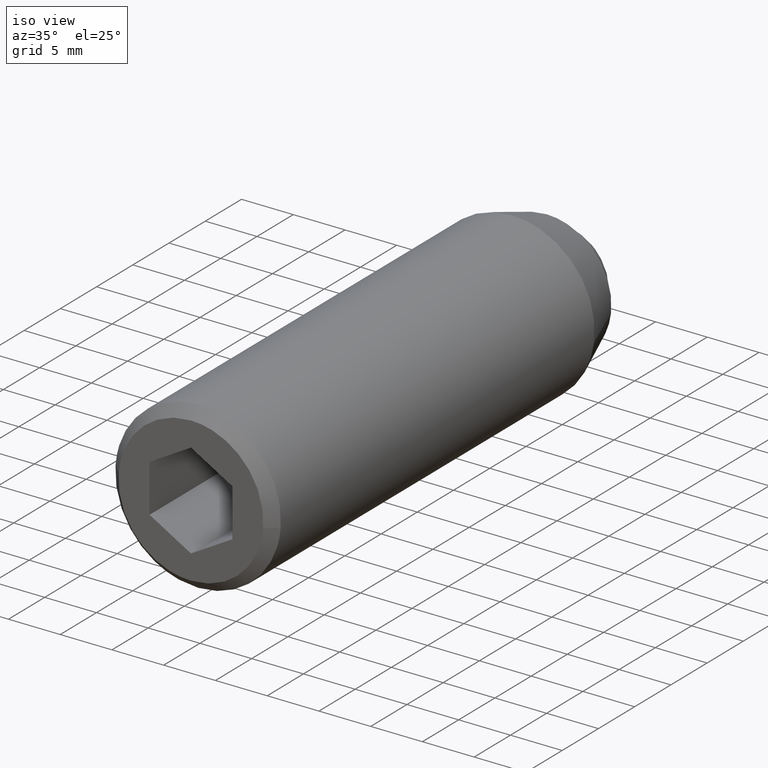
[diagram: clean part render]
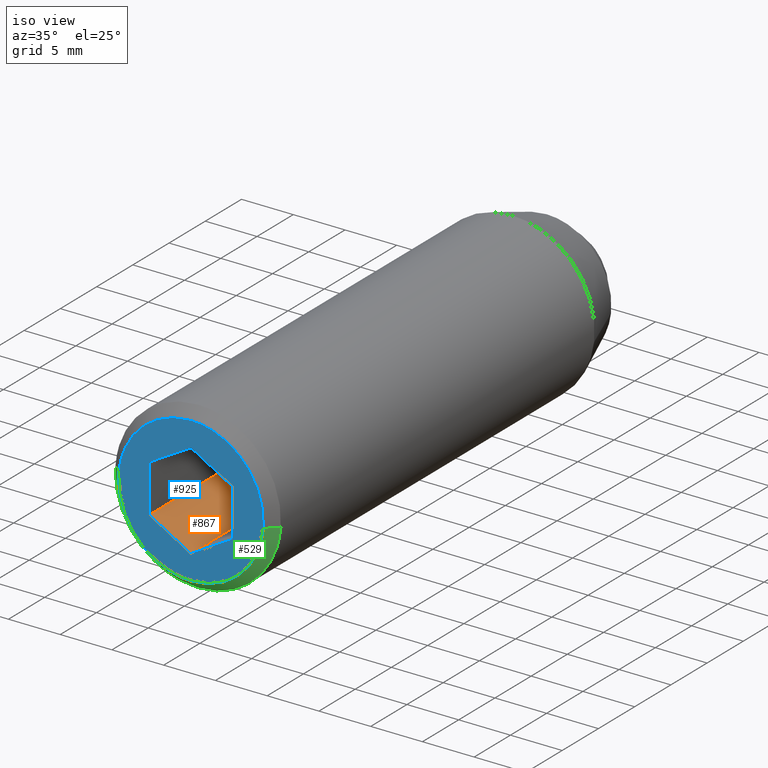
[diagram: same view with three faces highlighted in distinct colors, each labeled with its STEP entity id]
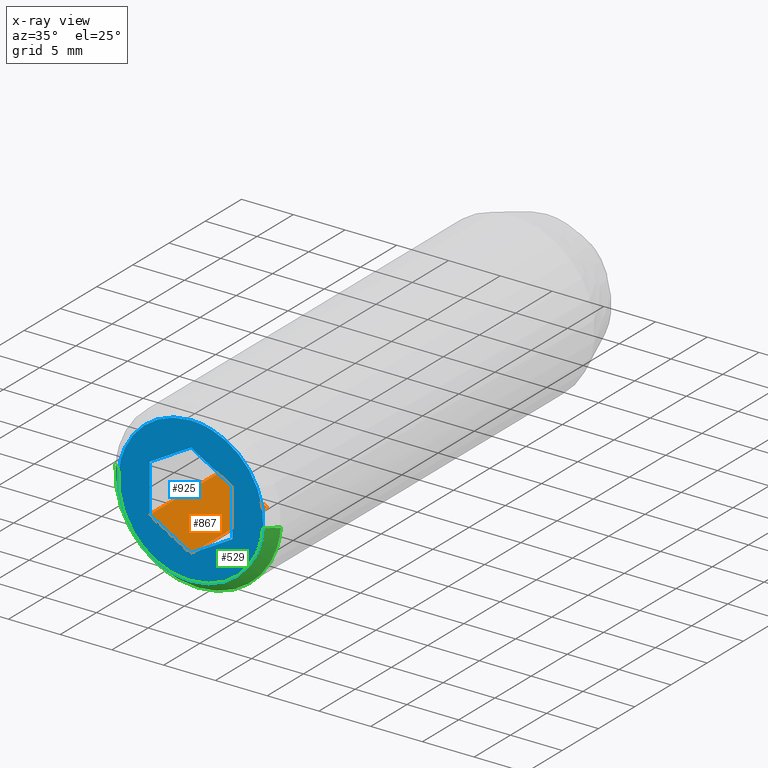
[diagram: x-ray of the same camera — body ghosted, the three highlighted faces saturated]
A machine part, iso view with three faces highlighted in distinct colors.
The next image is the same camera in x-ray (body ghosted, the three faces saturated) — at least one of them is partly hidden behind the body in this view.
Their STEP definitions:

[orange] entity #867 — the highlighted face is a freeform B-spline surface patch.
#738=CARTESIAN_POINT('',(-4.0,-38.600000000000001,-2.309401000000000));
#739=VERTEX_POINT('',#738);
#745=CARTESIAN_POINT('',(0.0,-38.600000000000001,-4.618802000000000));
#746=VERTEX_POINT('',#745);
#747=CARTESIAN_POINT('',(-4.0,-38.600000000000001,-2.309401000000000));
#748=CARTESIAN_POINT('',(0.0,-38.600000000000001,-4.618802000000000));
#749=QUASI_UNIFORM_CURVE('',1,(#747,#748),.UNSPECIFIED.,.F.,.U.);
#750=EDGE_CURVE('',#739,#746,#749,.T.);
#829=CARTESIAN_POINT('',(0.0,-49.099999999999987,-4.618802000000000));
#830=VERTEX_POINT('',#829);
#838=CARTESIAN_POINT('',(0.0,-38.600000000000001,-4.618802000000000));
#839=CARTESIAN_POINT('',(0.0,-49.099999999999987,-4.618802000000000));
#840=QUASI_UNIFORM_CURVE('',1,(#838,#839),.UNSPECIFIED.,.F.,.U.);
#841=EDGE_CURVE('',#746,#830,#840,.T.);
#846=CARTESIAN_POINT('',(0.199800029796360,-49.624473477611922,-4.734156597152939));
#847=CARTESIAN_POINT('',(-4.199800101321936,-49.624473477611922,-2.194046361551755));
#848=CARTESIAN_POINT('',(0.199800029796360,-38.075523236682052,-4.734156597152940));
#849=CARTESIAN_POINT('',(-4.199800101321936,-38.075523236682052,-2.194046361551755));
#850=B_SPLINE_SURFACE_WITH_KNOTS('',1,1,((#846,#848),(#847,#849)),.UNSPECIFIED.,.F.,.F.,.U.,(2,2),(2,2),(0.0,5.080220597842385),(0.0,11.548950240929861),.UNSPECIFIED.);
#851=CARTESIAN_POINT('',(-4.0,-49.099999999999987,-2.309401000000000));
#852=VERTEX_POINT('',#851);
#853=CARTESIAN_POINT('',(-4.0,-49.099999999999987,-2.309401000000000));
#854=CARTESIAN_POINT('',(0.0,-49.099999999999987,-4.618802000000000));
#855=QUASI_UNIFORM_CURVE('',1,(#853,#854),.UNSPECIFIED.,.F.,.U.);
#856=EDGE_CURVE('',#852,#830,#855,.T.);
#857=ORIENTED_EDGE('',*,*,#856,.T.);
#858=ORIENTED_EDGE('',*,*,#841,.F.);
#859=ORIENTED_EDGE('',*,*,#750,.F.);
#860=CARTESIAN_POINT('',(-4.0,-38.600000000000001,-2.309401000000000));
#861=CARTESIAN_POINT('',(-4.0,-49.099999999999987,-2.309401000000000));
#862=QUASI_UNIFORM_CURVE('',1,(#860,#861),.UNSPECIFIED.,.F.,.U.);
#863=EDGE_CURVE('',#739,#852,#862,.T.);
#864=ORIENTED_EDGE('',*,*,#863,.T.);
#865=EDGE_LOOP('',(#857,#858,#859,#864));
#866=FACE_OUTER_BOUND('',#865,.T.);
#867=ADVANCED_FACE('',(#866),#850,.F.);

[blue] entity #925 — the highlighted face is a freeform B-spline surface patch.
#480=CARTESIAN_POINT('',(6.978421253376019,-49.100000088082872,-0.549213598948107));
#481=VERTEX_POINT('',#480);
#487=CARTESIAN_POINT('',(0.0,-49.099999999999987,-7.000000000000001));
#488=VERTEX_POINT('',#487);
#489=CARTESIAN_POINT('',(0.0,-49.099999999999987,-7.000000000000001));
#490=CARTESIAN_POINT('',(6.470733561101162,-49.099999999999980,-7.000000000000002));
#491=CARTESIAN_POINT('',(6.978421253376019,-49.100000088082872,-0.549213598948107));
#499=(BOUNDED_CURVE()B_SPLINE_CURVE(2,(#489,#490,#491),.UNSPECIFIED.,.F.,.U.)B_SPLINE_CURVE_WITH_KNOTS((3,3),(0.0,0.236331303788669),.UNSPECIFIED.)CURVE()GEOMETRIC_REPRESENTATION_ITEM()RATIONAL_B_SPLINE_CURVE((1.0,0.723120654907827,0.969723362757943))REPRESENTATION_ITEM(''));
#500=EDGE_CURVE('',#488,#481,#499,.T.);
#502=CARTESIAN_POINT('',(-6.978421253376018,-49.100000088082872,0.549213598948106));
#503=VERTEX_POINT('',#502);
#504=CARTESIAN_POINT('',(-6.978421253376018,-49.100000088082865,0.549213598948106));
#505=CARTESIAN_POINT('',(-6.999999999999999,-49.099999999999994,0.275030684519681));
#506=CARTESIAN_POINT('',(-7.0,-49.099999999999987,-1.291960E-015));
#507=CARTESIAN_POINT('',(-6.999999999999999,-49.100000000000001,-7.000000000000002));
#508=CARTESIAN_POINT('',(0.0,-49.099999999999987,-7.000000000000001));
#516=(BOUNDED_CURVE()B_SPLINE_CURVE(2,(#504,#505,#506,#507,#508),.UNSPECIFIED.,.F.,.U.)B_SPLINE_CURVE_WITH_KNOTS((3,2,3),(0.736331303788669,0.750000000000000,1.0),.UNSPECIFIED.)CURVE()GEOMETRIC_REPRESENTATION_ITEM()RATIONAL_B_SPLINE_CURVE((0.969723362757943,0.983986126278720,1.0,0.707106781186547,1.0))REPRESENTATION_ITEM(''));
#517=EDGE_CURVE('',#503,#488,#516,.T.);
#551=CARTESIAN_POINT('',(0.0,-49.099999999999987,6.999999999999999));
#552=VERTEX_POINT('',#551);
#553=CARTESIAN_POINT('',(0.0,-49.099999999999987,6.999999999999999));
#554=CARTESIAN_POINT('',(-6.470733561101126,-49.099999999999994,7.0));
#555=CARTESIAN_POINT('',(-6.978421253376018,-49.100000088082872,0.549213598948106));
#563=(BOUNDED_CURVE()B_SPLINE_CURVE(2,(#553,#554,#555),.UNSPECIFIED.,.F.,.U.)B_SPLINE_CURVE_WITH_KNOTS((3,3),(0.500000000000000,0.736331303788668),.UNSPECIFIED.)CURVE()GEOMETRIC_REPRESENTATION_ITEM()RATIONAL_B_SPLINE_CURVE((1.0,0.723120654907828,0.969723362757941))REPRESENTATION_ITEM(''));
#564=EDGE_CURVE('',#552,#503,#563,.T.);
#566=CARTESIAN_POINT('',(6.978421253376018,-49.100000088082865,-0.549213598948107));
#567=CARTESIAN_POINT('',(7.000000000000001,-49.100000000000001,-0.275030684519683));
#568=CARTESIAN_POINT('',(7.0,-49.099999999999987,-1.291960E-015));
#569=CARTESIAN_POINT('',(6.999999999999999,-49.100000000000001,6.999999999999999));
#570=CARTESIAN_POINT('',(0.0,-49.099999999999987,6.999999999999999));
#578=(BOUNDED_CURVE()B_SPLINE_CURVE(2,(#566,#567,#568,#569,#570),.UNSPECIFIED.,.F.,.U.)B_SPLINE_CURVE_WITH_KNOTS((3,2,3),(0.236331303788669,0.250000000000000,0.500000000000000),.UNSPECIFIED.)CURVE()GEOMETRIC_REPRESENTATION_ITEM()RATIONAL_B_SPLINE_CURVE((0.969723362757943,0.983986126278720,1.0,0.707106781186547,1.0))REPRESENTATION_ITEM(''));
#579=EDGE_CURVE('',#481,#552,#578,.T.);
#779=CARTESIAN_POINT('',(4.0,-49.099999999999987,2.309401000000000));
#780=VERTEX_POINT('',#779);
#781=CARTESIAN_POINT('',(0.0,-49.099999999999987,4.618802000000000));
#782=VERTEX_POINT('',#781);
#783=CARTESIAN_POINT('',(4.0,-49.099999999999987,2.309401000000000));
#784=CARTESIAN_POINT('',(0.0,-49.099999999999987,4.618802000000000));
#785=QUASI_UNIFORM_CURVE('',1,(#783,#784),.UNSPECIFIED.,.F.,.U.);
#786=EDGE_CURVE('',#780,#782,#785,.T.);
#807=CARTESIAN_POINT('',(4.0,-49.099999999999987,-2.309401000000000));
#808=VERTEX_POINT('',#807);
#809=CARTESIAN_POINT('',(4.0,-49.099999999999987,-2.309401000000000));
#810=CARTESIAN_POINT('',(4.0,-49.099999999999987,2.309401000000000));
#811=QUASI_UNIFORM_CURVE('',1,(#809,#810),.UNSPECIFIED.,.F.,.U.);
#812=EDGE_CURVE('',#808,#780,#811,.T.);
#829=CARTESIAN_POINT('',(0.0,-49.099999999999987,-4.618802000000000));
#830=VERTEX_POINT('',#829);
#831=CARTESIAN_POINT('',(0.0,-49.099999999999987,-4.618802000000000));
#832=CARTESIAN_POINT('',(4.0,-49.099999999999987,-2.309401000000000));
#833=QUASI_UNIFORM_CURVE('',1,(#831,#832),.UNSPECIFIED.,.F.,.U.);
#834=EDGE_CURVE('',#830,#808,#833,.T.);
#851=CARTESIAN_POINT('',(-4.0,-49.099999999999987,-2.309401000000000));
#852=VERTEX_POINT('',#851);
#853=CARTESIAN_POINT('',(-4.0,-49.099999999999987,-2.309401000000000));
#854=CARTESIAN_POINT('',(0.0,-49.099999999999987,-4.618802000000000));
#855=QUASI_UNIFORM_CURVE('',1,(#853,#854),.UNSPECIFIED.,.F.,.U.);
#856=EDGE_CURVE('',#852,#830,#855,.T.);
#873=CARTESIAN_POINT('',(-4.0,-49.099999999999987,2.309401000000000));
#874=VERTEX_POINT('',#873);
#875=CARTESIAN_POINT('',(-4.0,-49.099999999999987,2.309401000000000));
#876=CARTESIAN_POINT('',(-4.0,-49.099999999999987,-2.309401000000000));
#877=QUASI_UNIFORM_CURVE('',1,(#875,#876),.UNSPECIFIED.,.F.,.U.);
#878=EDGE_CURVE('',#874,#852,#877,.T.);
#895=CARTESIAN_POINT('',(0.0,-49.099999999999987,4.618802000000000));
#896=CARTESIAN_POINT('',(-4.0,-49.099999999999987,2.309401000000000));
#897=QUASI_UNIFORM_CURVE('',1,(#895,#896),.UNSPECIFIED.,.F.,.U.);
#898=EDGE_CURVE('',#782,#874,#897,.T.);
#906=CARTESIAN_POINT('',(-7.697163269087930,-49.099999999999987,7.699299972865284));
#907=CARTESIAN_POINT('',(-7.697163269087930,-49.099999999999987,-7.699300348374545));
#908=CARTESIAN_POINT('',(7.697163644597192,-49.099999999999987,7.699299972865284));
#909=CARTESIAN_POINT('',(7.697163644597192,-49.099999999999987,-7.699300348374545));
#910=B_SPLINE_SURFACE_WITH_KNOTS('',1,1,((#906,#908),(#907,#909)),.UNSPECIFIED.,.F.,.F.,.U.,(2,2),(2,2),(0.0,15.398600321239829),(0.0,15.394326913685120),.UNSPECIFIED.);
#911=ORIENTED_EDGE('',*,*,#500,.T.);
#912=ORIENTED_EDGE('',*,*,#579,.T.);
#913=ORIENTED_EDGE('',*,*,#564,.T.);
#914=ORIENTED_EDGE('',*,*,#517,.T.);
#915=EDGE_LOOP('',(#911,#912,#913,#914));
#916=FACE_OUTER_BOUND('',#915,.T.);
#917=ORIENTED_EDGE('',*,*,#898,.F.);
#918=ORIENTED_EDGE('',*,*,#786,.F.);
#919=ORIENTED_EDGE('',*,*,#812,.F.);
#920=ORIENTED_EDGE('',*,*,#834,.F.);
#921=ORIENTED_EDGE('',*,*,#856,.F.);
#922=ORIENTED_EDGE('',*,*,#878,.F.);
#923=EDGE_LOOP('',(#917,#918,#919,#920,#921,#922));
#924=FACE_BOUND('',#923,.T.);
#925=ADVANCED_FACE('',(#916,#924),#910,.T.);

[green] entity #529 — the highlighted face is a freeform B-spline surface patch.
#256=CARTESIAN_POINT('',(-1.874588911888321,-48.099999999999987,-7.777269212996639));
#257=VERTEX_POINT('',#256);
#258=CARTESIAN_POINT('',(0.0,-48.099999999999987,-8.000000000000002));
#259=VERTEX_POINT('',#258);
#260=CARTESIAN_POINT('',(-1.874588911888321,-48.100000000000001,-7.777269212996639));
#261=CARTESIAN_POINT('',(-0.950526424612221,-48.099999999999987,-8.000000000000002));
#262=CARTESIAN_POINT('',(0.0,-48.099999999999987,-8.000000000000002));
#270=(BOUNDED_CURVE()B_SPLINE_CURVE(2,(#260,#261,#262),.UNSPECIFIED.,.F.,.U.)B_SPLINE_CURVE_WITH_KNOTS((3,3),(0.959962709885903,1.0),.UNSPECIFIED.)CURVE()GEOMETRIC_REPRESENTATION_ITEM()RATIONAL_B_SPLINE_CURVE((0.921210900018794,0.953093396903657,1.0))REPRESENTATION_ITEM(''));
#271=EDGE_CURVE('',#257,#259,#270,.T.);
#342=CARTESIAN_POINT('',(-7.985078427886355,-48.099999999999987,0.488387653922092));
#343=VERTEX_POINT('',#342);
#349=CARTESIAN_POINT('',(-7.975338669871608,-48.099999999983417,0.627672765950198));
#350=VERTEX_POINT('',#349);
#351=CARTESIAN_POINT('',(-7.975338669871609,-48.099999999983424,0.627672765950198));
#352=CARTESIAN_POINT('',(-7.980816339169483,-48.100000000000009,0.558072378191406));
#353=CARTESIAN_POINT('',(-7.985078427886355,-48.099999999999994,0.488387653922092));
#361=(BOUNDED_CURVE()B_SPLINE_CURVE(2,(#351,#352,#353),.UNSPECIFIED.,.F.,.U.)B_SPLINE_CURVE_WITH_KNOTS((3,3),(0.736331300627344,0.739332990867243),.UNSPECIFIED.)CURVE()GEOMETRIC_REPRESENTATION_ITEM()RATIONAL_B_SPLINE_CURVE((0.969723356160499,0.972855505428922,0.976072103022623))REPRESENTATION_ITEM(''));
#362=EDGE_CURVE('',#350,#343,#361,.T.);
#379=CARTESIAN_POINT('',(7.975338669871608,-48.099999999983417,-0.627672765950198));
#380=VERTEX_POINT('',#379);
#396=CARTESIAN_POINT('',(0.0,-48.099999999999987,-8.000000000000002));
#397=CARTESIAN_POINT('',(7.395123933031013,-48.099999999999994,-8.000000000000002));
#398=CARTESIAN_POINT('',(7.975338669871608,-48.099999999983424,-0.627672765950198));
#406=(BOUNDED_CURVE()B_SPLINE_CURVE(2,(#396,#397,#398),.UNSPECIFIED.,.F.,.U.)B_SPLINE_CURVE_WITH_KNOTS((3,3),(0.0,0.236331300627345),.UNSPECIFIED.)CURVE()GEOMETRIC_REPRESENTATION_ITEM()RATIONAL_B_SPLINE_CURVE((1.0,0.723120658611550,0.969723356160499))REPRESENTATION_ITEM(''));
#407=EDGE_CURVE('',#259,#380,#406,.T.);
#426=CARTESIAN_POINT('',(-7.985078427886355,-48.099999999999994,0.488387653922092));
#427=CARTESIAN_POINT('',(-8.0,-48.099999999999994,0.244421442174768));
#428=CARTESIAN_POINT('',(-8.0,-48.099999999999987,-1.291960E-015));
#429=CARTESIAN_POINT('',(-8.0,-48.100000000000001,-6.300834825538831));
#430=CARTESIAN_POINT('',(-1.874588911888321,-48.100000000000001,-7.777269212996639));
#438=(BOUNDED_CURVE()B_SPLINE_CURVE(2,(#426,#427,#428,#429,#430),.UNSPECIFIED.,.F.,.U.)B_SPLINE_CURVE_WITH_KNOTS((3,2,3),(0.739332990867244,0.750000000000000,0.959962709885903),.UNSPECIFIED.)CURVE()GEOMETRIC_REPRESENTATION_ITEM()RATIONAL_B_SPLINE_CURVE((0.976072103022625,0.987502821439979,1.0,0.754013384282891,0.921210900018794))REPRESENTATION_ITEM(''));
#439=EDGE_CURVE('',#343,#257,#438,.T.);
#461=CARTESIAN_POINT('',(6.953498402788556,-49.125000000000000,-0.547252192701723));
#462=CARTESIAN_POINT('',(6.406246210086835,-49.125000000000000,-7.500750595490278));
#463=CARTESIAN_POINT('',(-0.547252192701722,-49.125000000000000,-6.953498402788557));
#464=CARTESIAN_POINT('',(-7.500750595490278,-49.125000000000000,-6.406246210086835));
#465=CARTESIAN_POINT('',(-6.953498402788556,-49.125000000000000,0.547252192701721));
#466=CARTESIAN_POINT('',(8.000884676541924,-48.074374999999989,-0.629683280150791));
#467=CARTESIAN_POINT('',(7.371201396391133,-48.074374999999989,-8.630567956692715));
#468=CARTESIAN_POINT('',(-0.629683280150790,-48.074374999999989,-8.000884676541926));
#469=CARTESIAN_POINT('',(-8.630567956692714,-48.074374999999989,-7.371201396391135));
#470=CARTESIAN_POINT('',(-8.000884676541924,-48.074374999999989,0.629683280150788));
#478=(BOUNDED_SURFACE()B_SPLINE_SURFACE(2,1,((#461,#466),(#462,#467),(#463,#468),(#464,#469),(#465,#470)),.UNSPECIFIED.,.F.,.F.,.U.)B_SPLINE_SURFACE_WITH_KNOTS((3,2,3),(2,2),(0.0,13.297290886082269,26.594581772164538),(0.0,1.0),.UNSPECIFIED.)GEOMETRIC_REPRESENTATION_ITEM()RATIONAL_B_SPLINE_SURFACE(((1.0,1.0),(0.707106781186548,0.707106781186548),(1.0,1.0),(0.707106781186548,0.707106781186548),(1.0,1.0)))REPRESENTATION_ITEM('')SURFACE());
#479=ORIENTED_EDGE('',*,*,#407,.T.);
#480=CARTESIAN_POINT('',(6.978421253376019,-49.100000088082872,-0.549213598948107));
#481=VERTEX_POINT('',#480);
#482=CARTESIAN_POINT('',(6.978421253376019,-49.100000088082872,-0.549213598948107));
#483=CARTESIAN_POINT('',(7.975338669871608,-48.099999999983417,-0.627672765950198));
#484=QUASI_UNIFORM_CURVE('',1,(#482,#483),.UNSPECIFIED.,.F.,.U.);
#485=EDGE_CURVE('',#481,#380,#484,.T.);
#486=ORIENTED_EDGE('',*,*,#485,.F.);
#487=CARTESIAN_POINT('',(0.0,-49.099999999999987,-7.000000000000001));
#488=VERTEX_POINT('',#487);
#489=CARTESIAN_POINT('',(0.0,-49.099999999999987,-7.000000000000001));
#490=CARTESIAN_POINT('',(6.470733561101162,-49.099999999999980,-7.000000000000002));
#491=CARTESIAN_POINT('',(6.978421253376019,-49.100000088082872,-0.549213598948107));
#499=(BOUNDED_CURVE()B_SPLINE_CURVE(2,(#489,#490,#491),.UNSPECIFIED.,.F.,.U.)B_SPLINE_CURVE_WITH_KNOTS((3,3),(0.0,0.236331303788669),.UNSPECIFIED.)CURVE()GEOMETRIC_REPRESENTATION_ITEM()RATIONAL_B_SPLINE_CURVE((1.0,0.723120654907827,0.969723362757943))REPRESENTATION_ITEM(''));
#500=EDGE_CURVE('',#488,#481,#499,.T.);
#501=ORIENTED_EDGE('',*,*,#500,.F.);
#502=CARTESIAN_POINT('',(-6.978421253376018,-49.100000088082872,0.549213598948106));
#503=VERTEX_POINT('',#502);
#504=CARTESIAN_POINT('',(-6.978421253376018,-49.100000088082865,0.549213598948106));
#505=CARTESIAN_POINT('',(-6.999999999999999,-49.099999999999994,0.275030684519681));
#506=CARTESIAN_POINT('',(-7.0,-49.099999999999987,-1.291960E-015));
#507=CARTESIAN_POINT('',(-6.999999999999999,-49.100000000000001,-7.000000000000002));
#508=CARTESIAN_POINT('',(0.0,-49.099999999999987,-7.000000000000001));
#516=(BOUNDED_CURVE()B_SPLINE_CURVE(2,(#504,#505,#506,#507,#508),.UNSPECIFIED.,.F.,.U.)B_SPLINE_CURVE_WITH_KNOTS((3,2,3),(0.736331303788669,0.750000000000000,1.0),.UNSPECIFIED.)CURVE()GEOMETRIC_REPRESENTATION_ITEM()RATIONAL_B_SPLINE_CURVE((0.969723362757943,0.983986126278720,1.0,0.707106781186547,1.0))REPRESENTATION_ITEM(''));
#517=EDGE_CURVE('',#503,#488,#516,.T.);
#518=ORIENTED_EDGE('',*,*,#517,.F.);
#519=CARTESIAN_POINT('',(-6.978421253376018,-49.100000088082872,0.549213598948106));
#520=CARTESIAN_POINT('',(-7.975338669871608,-48.099999999983417,0.627672765950198));
#521=QUASI_UNIFORM_CURVE('',1,(#519,#520),.UNSPECIFIED.,.F.,.U.);
#522=EDGE_CURVE('',#503,#350,#521,.T.);
#523=ORIENTED_EDGE('',*,*,#522,.T.);
#524=ORIENTED_EDGE('',*,*,#362,.T.);
#525=ORIENTED_EDGE('',*,*,#439,.T.);
#526=ORIENTED_EDGE('',*,*,#271,.T.);
#527=EDGE_LOOP('',(#479,#486,#501,#518,#523,#524,#525,#526));
#528=FACE_OUTER_BOUND('',#527,.T.);
#529=ADVANCED_FACE('',(#528),#478,.T.);